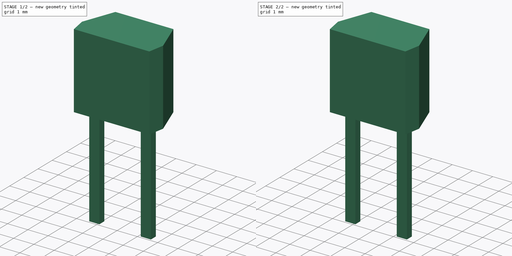
[diagram: build sequence overview — one tinted view per stage of 2, left to right]
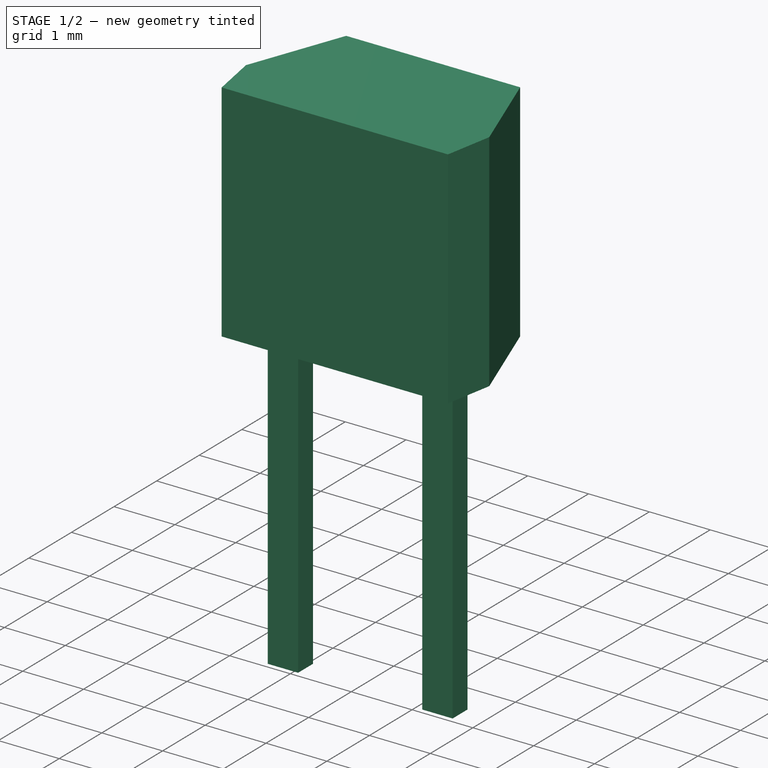
[diagram: stage 1 of 2 — iso view after this stage's code; geometry added in this stage tinted green]
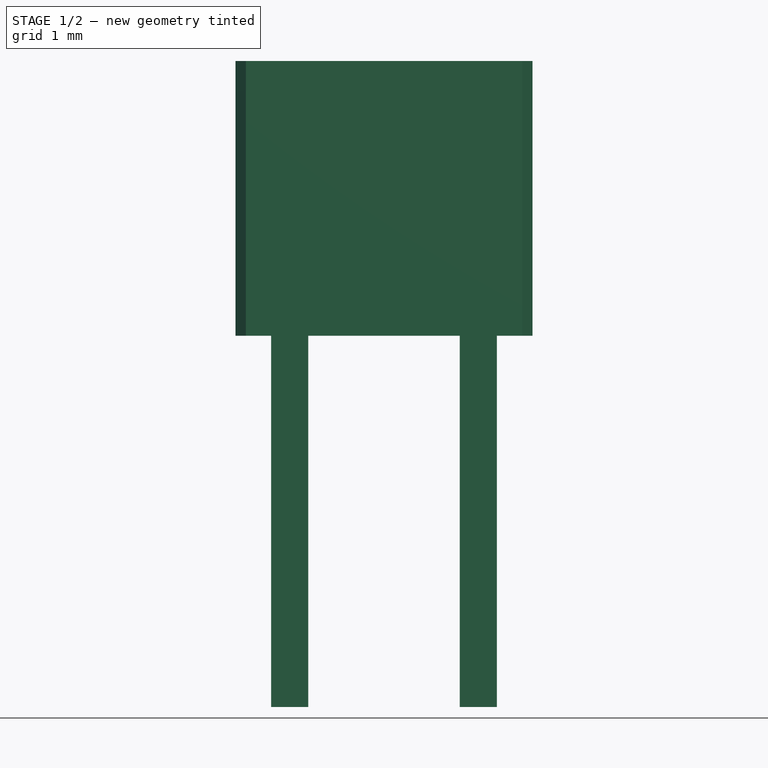
[diagram: stage 1 of 2 — front view after this stage's code; geometry added in this stage tinted green]
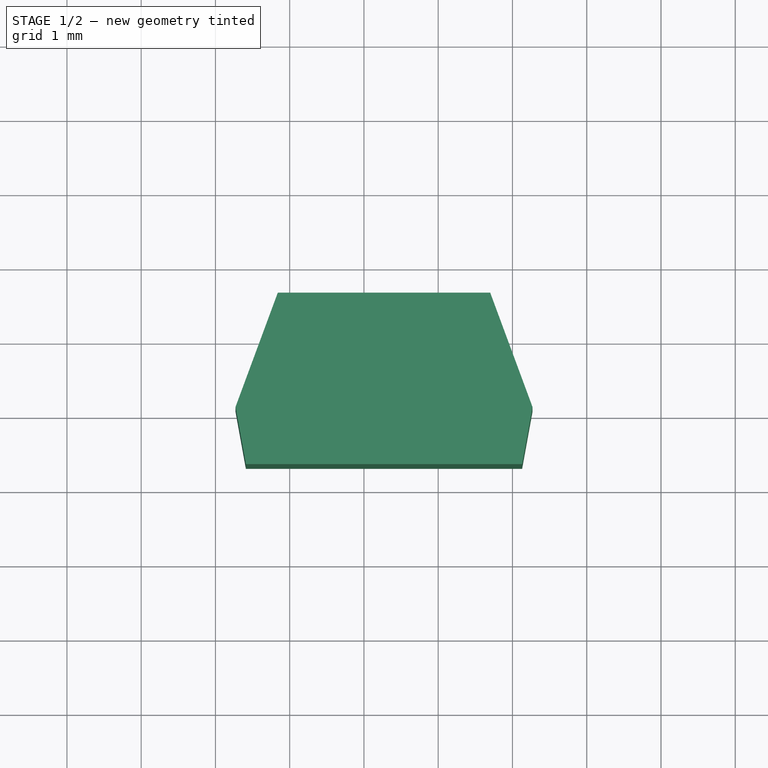
[diagram: stage 1 of 2 — top view after this stage's code; geometry added in this stage tinted green]
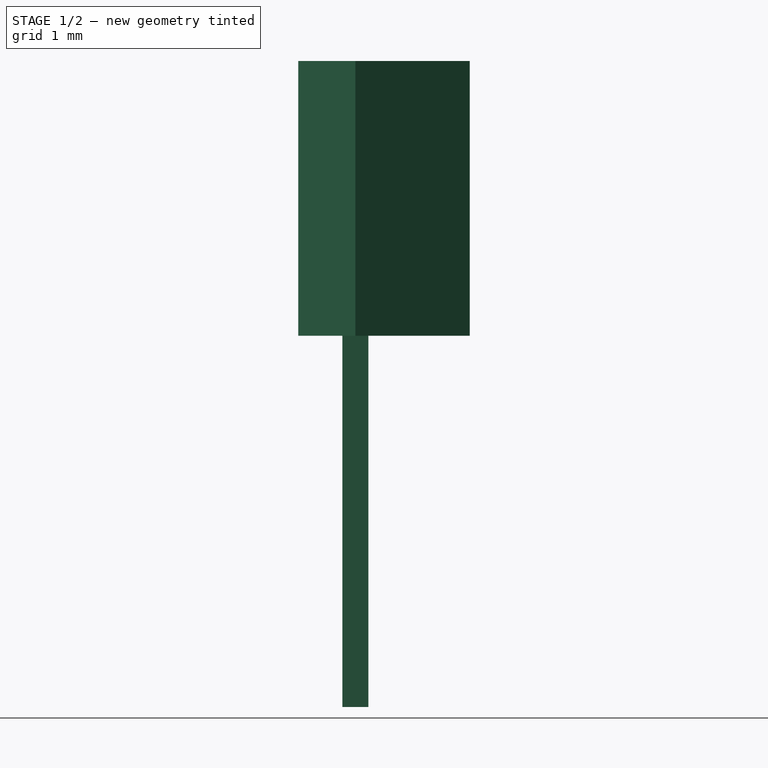
[diagram: stage 1 of 2 — right view after this stage's code; geometry added in this stage tinted green]
FCSTD DOCUMENT  (FreeCAD 0.16R6712 (Git))
Label: TO-92S-2
License: All rights reserved
LicenseURL: http://en.wikipedia.org/wiki/All_rights_reserved
objects: Sketcher::SketchObject×2, PartDesign::Pad×2, Part::MultiFuse×1
note: 7 computed .brp shape members not serialized (recipe doc carries the construction recipe); baked Part::Feature solids carry a one-line shape summary decoded from their .brp

FEATURE [Sketcher::SketchObject] Sketch
  Placement = pos=(0,0,2.5) rot=(0,0,1;0rad)
  expr: Constraints[18] = 3.72 / 2
  expr: Constraints[17] = 2.86 / 2
  sketch-geometry (7):
    g0: LineSegment [constr] StartX=0 StartY=0 StartZ=0 EndX=1.27 EndY=0 EndZ=0
    g1: LineSegment StartX=-0.16 StartY=1.54 StartZ=0 EndX=2.7 EndY=1.54 EndZ=0
    g2: LineSegment StartX=2.7 StartY=1.54 StartZ=0 EndX=3.27 EndY=0 EndZ=0
    g3: LineSegment StartX=3.27 StartY=0 StartZ=0 EndX=3.13 EndY=-0.77 EndZ=0
    g4: LineSegment StartX=3.13 StartY=-0.77 StartZ=0 EndX=-0.59 EndY=-0.77 EndZ=0
    g5: LineSegment StartX=-0.59 StartY=-0.77 StartZ=0 EndX=-0.73 EndY=0 EndZ=0
    g6: LineSegment StartX=-0.73 StartY=0 StartZ=0 EndX=-0.16 EndY=1.54 EndZ=0
  constraints (21):
    c: Coincident(g0,g-1)
    c: Horizontal(g0)
    c: DistanceX(g0,g0) = 1.27
    c: Horizontal(g1)
    c: PointOnObject(g2,g-1)
    c: Horizontal(g4)
    c: PointOnObject(g5,g-1)
    c: Coincident(g6,g1)
    c: Coincident(g1,g2)
    c: DistanceX(g1,g1) = 2.86
    c: DistanceX(g4,g4) = 3.72
    c: Coincident(g5,g4)
    c: Coincident(g3,g4)
    c: DistanceX(g5,g2) = 4
    c: Coincident(g5,g6)
    c: Coincident(g2,g3)
    c: DistanceX(g5,g0) = 2
    c: DistanceX(g1,g0) = 1.43
    c: DistanceX(g4,g0) = 1.86
    c: DistanceY(g3,g1) = 2.31
    c: DistanceY(g3,g2) = 0.77
FEATURE [Sketcher::SketchObject] Sketch001
  Placement = pos=(0,0,2.5) rot=(0,0,1;0rad)
  sketch-geometry (9):
    g0: LineSegment StartX=-0.25 StartY=0.175 StartZ=0 EndX=0.25 EndY=0.175 EndZ=0
    g1: LineSegment StartX=0.25 StartY=0.175 StartZ=0 EndX=0.25 EndY=-0.175 EndZ=0
    g2: LineSegment StartX=0.25 StartY=-0.175 StartZ=0 EndX=-0.25 EndY=-0.175 EndZ=0
    g3: LineSegment StartX=-0.25 StartY=-0.175 StartZ=0 EndX=-0.25 EndY=0.175 EndZ=0
    g4: LineSegment [constr] StartX=-0.25 StartY=0 StartZ=0 EndX=0.25 EndY=0 EndZ=0
    g5: LineSegment StartX=2.29 StartY=0.175 StartZ=0 EndX=2.79 EndY=0.175 EndZ=0
    g6: LineSegment StartX=2.79 StartY=0.175 StartZ=0 EndX=2.79 EndY=-0.175 EndZ=0
    g7: LineSegment StartX=2.79 StartY=-0.175 StartZ=0 EndX=2.29 EndY=-0.175 EndZ=0
    g8: LineSegment StartX=2.29 StartY=-0.175 StartZ=0 EndX=2.29 EndY=0.175 EndZ=0
  constraints (28):
    c: Coincident(g0,g1)
    c: Coincident(g1,g2)
    c: Coincident(g2,g3)
    c: Coincident(g3,g0)
    c: Horizontal(g0)
    c: Horizontal(g2)
    c: Vertical(g1)
    c: Vertical(g3)
    c: DistanceX(g0,g0) = 0.5
    c: DistanceY(g1,g1) = 0.35
    c: PointOnObject(g4,g3)
    c: PointOnObject(g4,g1)
    c: Horizontal(g4)
    c: PointOnObject(g-1,g4)
    c: Symmetric(g1,g1,g4)
    c: Symmetric(g4,g4,g-1)
    c: Coincident(g5,g6)
    c: Coincident(g6,g7)
    c: Coincident(g7,g8)
    c: Coincident(g8,g5)
    c: Horizontal(g5)
    c: Horizontal(g7)
    c: Vertical(g6)
    c: Vertical(g8)
    c: Equal(g5,g0)
    c: Equal(g3,g8)
    c: DistanceY(g5,g0) = 0
    c: DistanceX(g0,g5) = 2.54
FEATURE [PartDesign::Pad] Pad001
  Length = 5
  Length2 = 100
  Placement = pos=(0,0,2.5) rot=(0,0,1;0rad)
  Reversed = true
  Sketch = -> Sketch001
  Type = 0
FEATURE [PartDesign::Pad] Pad
  Length = 3.7
  Length2 = 100
  Placement = pos=(0,0,2.5) rot=(0,0,1;0rad)
  Sketch = -> Sketch
  Type = 0
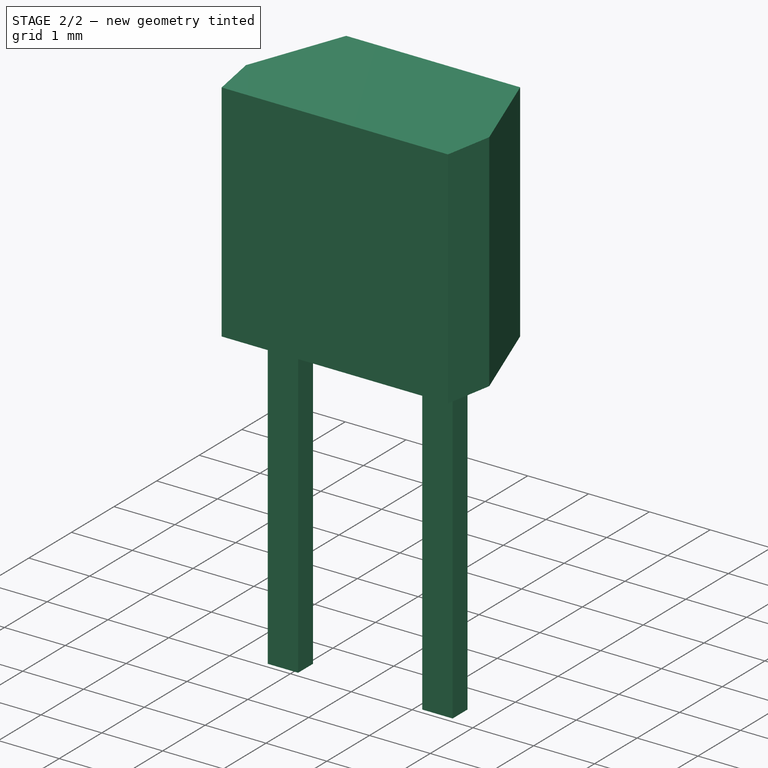
[diagram: stage 2 of 2 — iso view after this stage's code; geometry added in this stage tinted green]
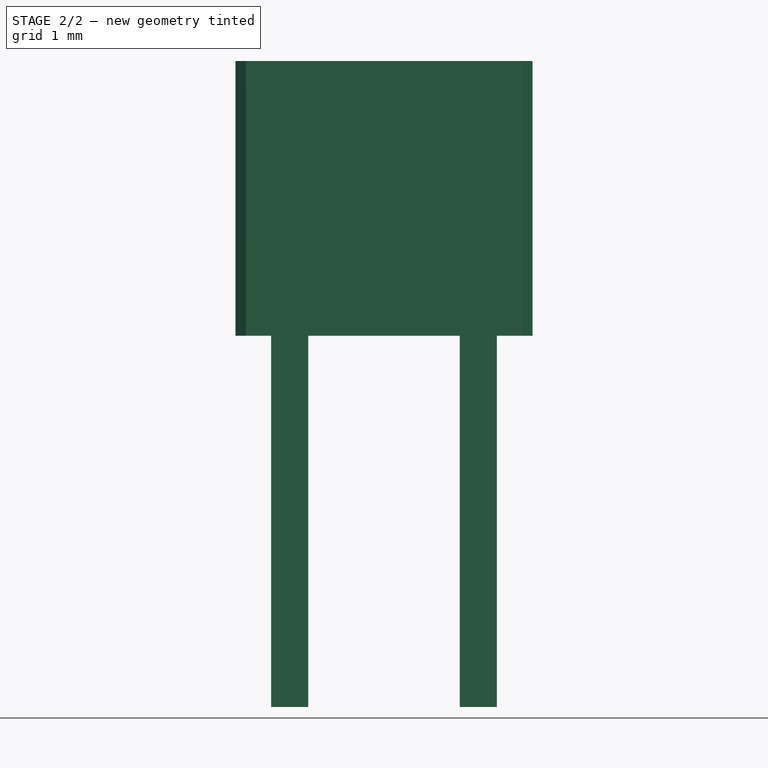
[diagram: stage 2 of 2 — front view after this stage's code; geometry added in this stage tinted green]
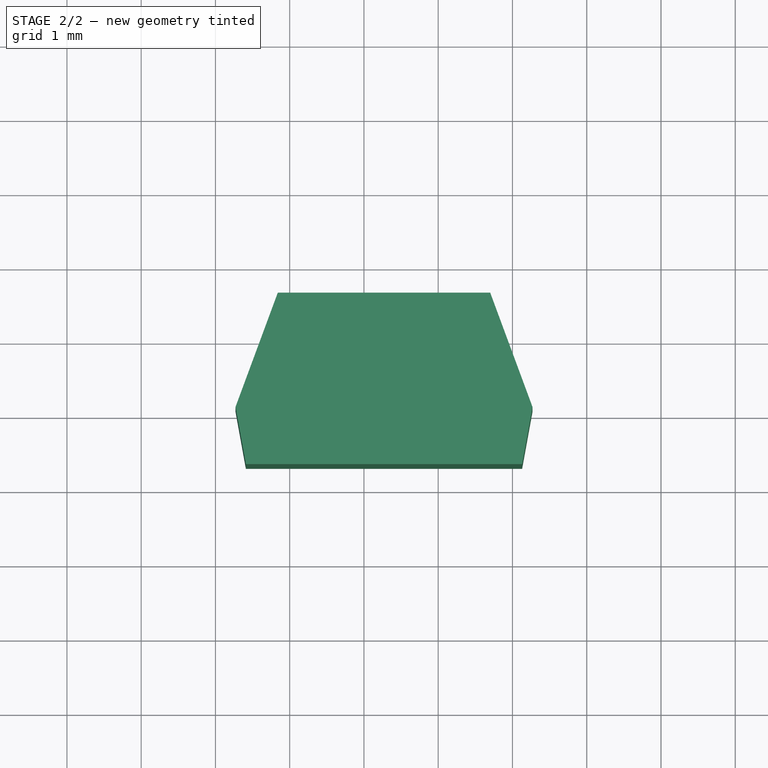
[diagram: stage 2 of 2 — top view after this stage's code; geometry added in this stage tinted green]
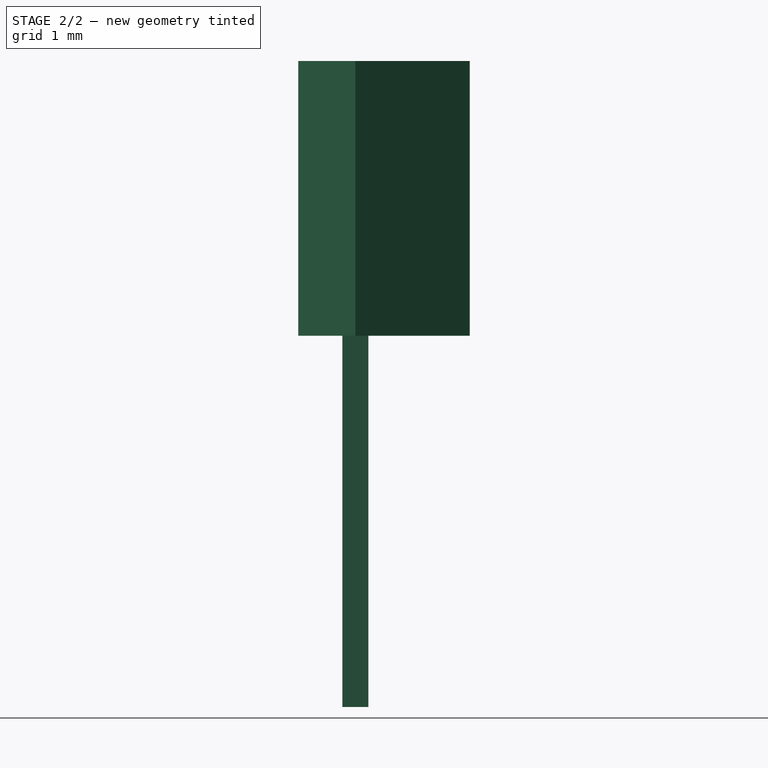
[diagram: stage 2 of 2 — right view after this stage's code; geometry added in this stage tinted green]
FEATURE [Part::MultiFuse] Pad001_mp_cp  label="TO-92S-2"
  Shapes = -> [Pad001,Pad]
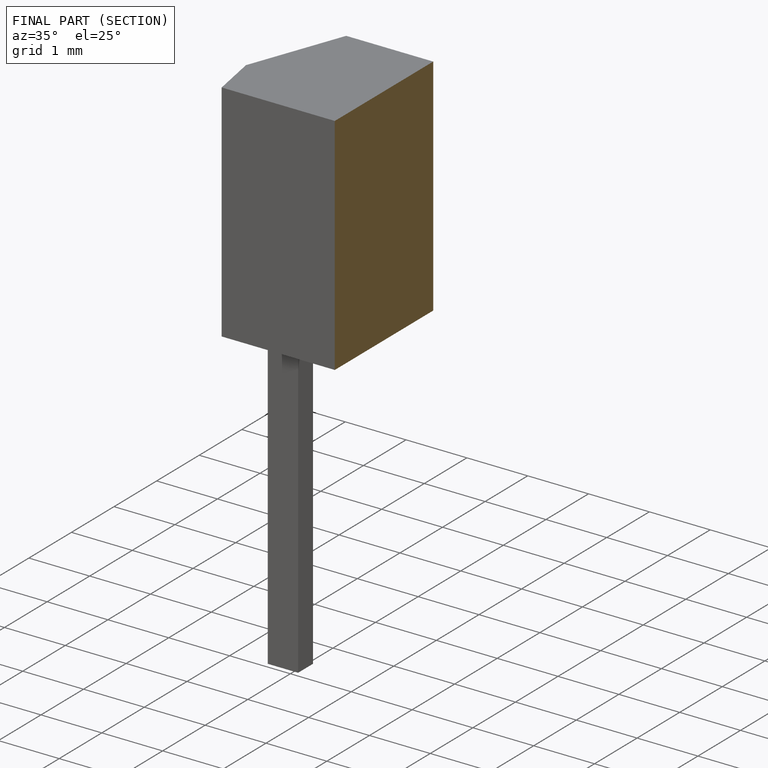
[diagram: finished part — half-section view (interior)]
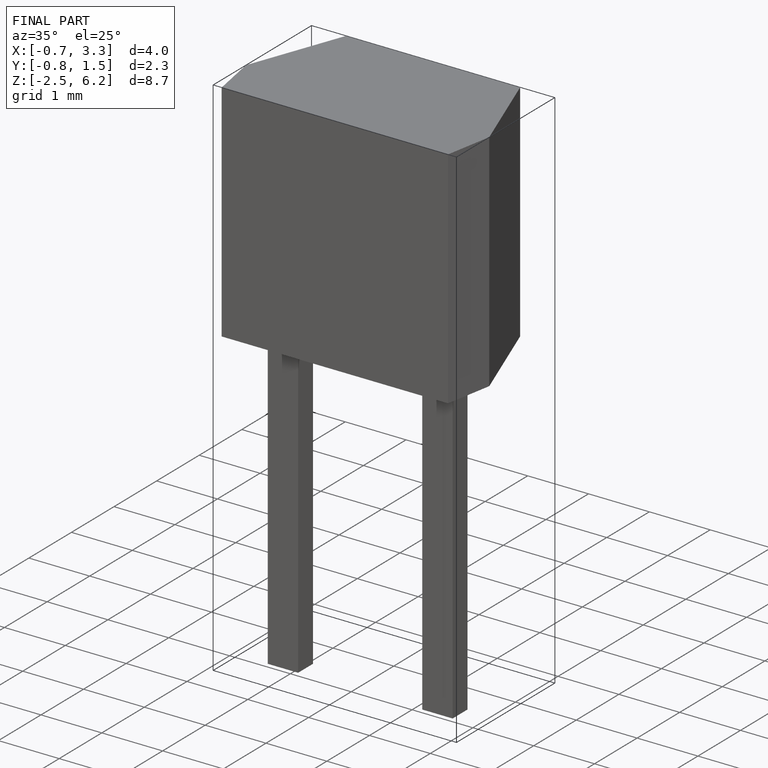
[diagram: finished part — iso view with bounding-box wireframe]
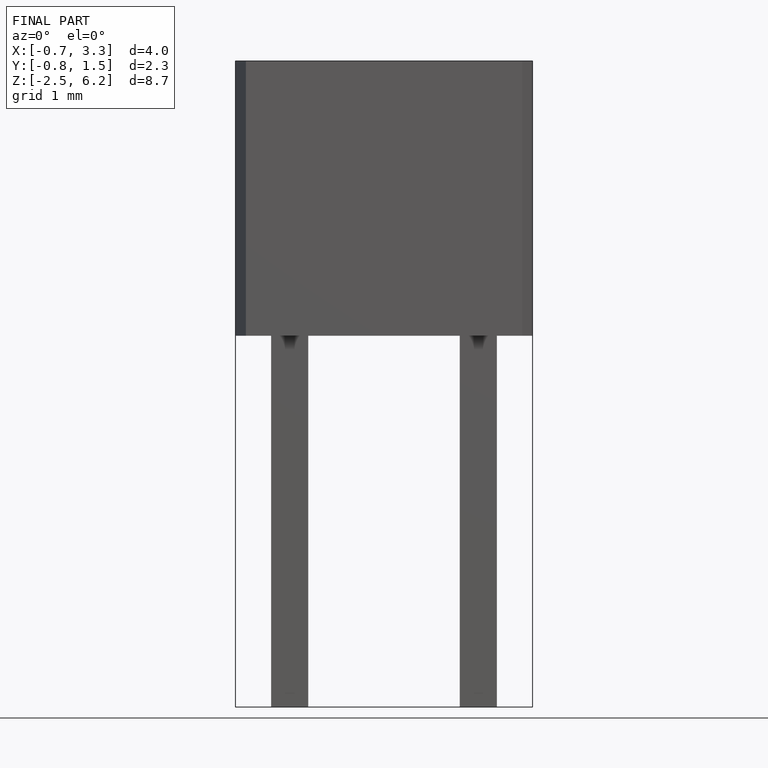
[diagram: finished part — front view with bounding-box wireframe]
